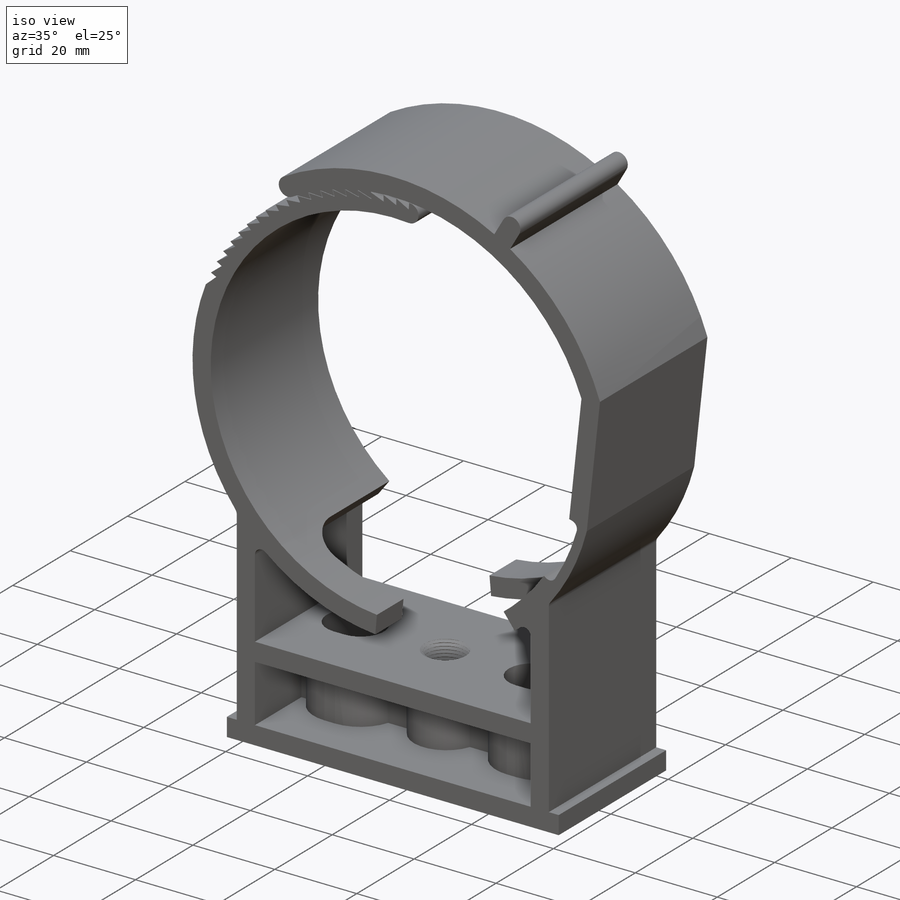
[diagram: iso view]
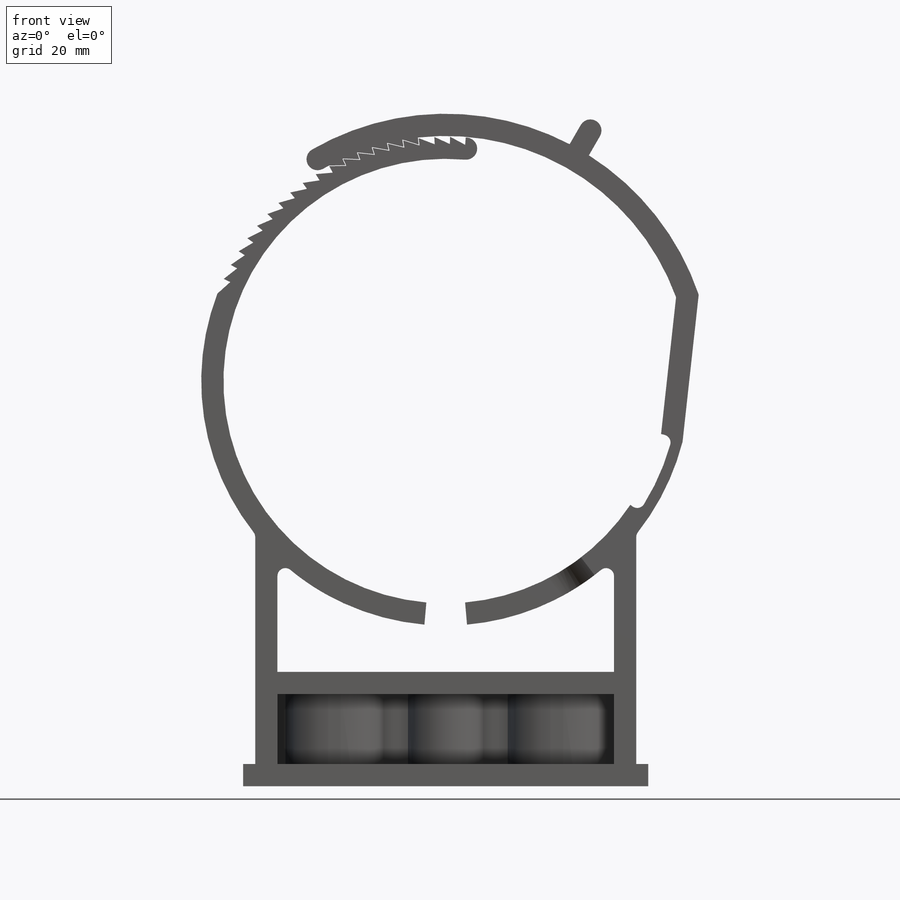
[diagram: front view]
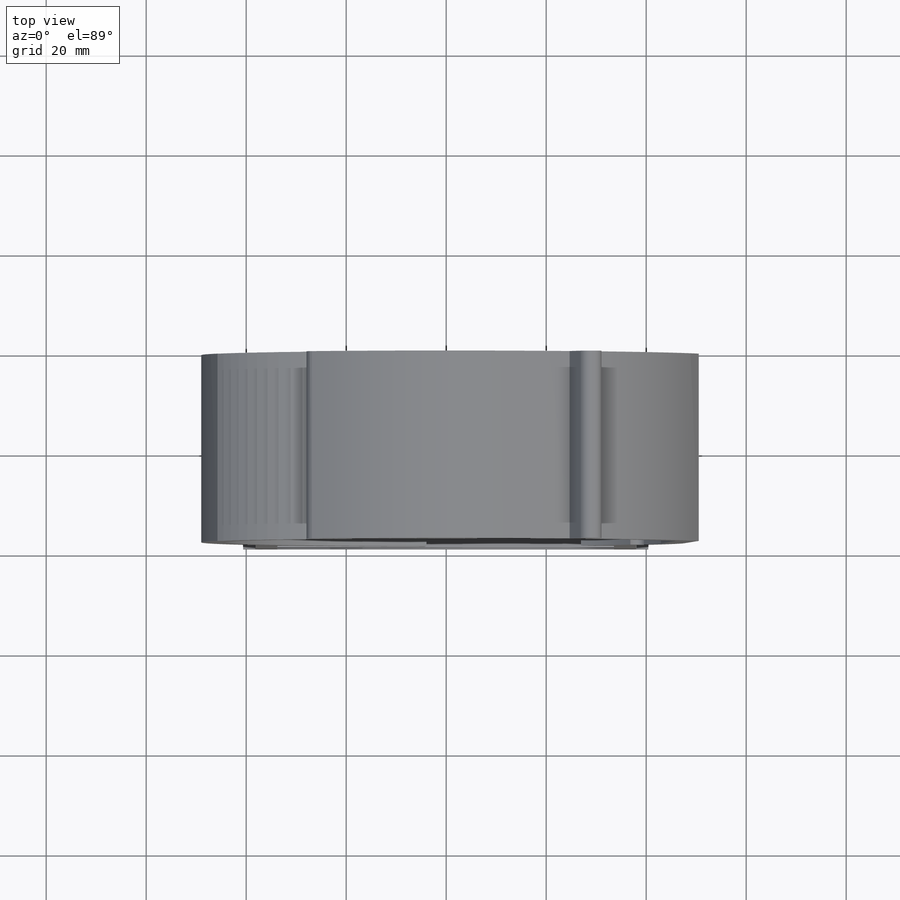
[diagram: top view]
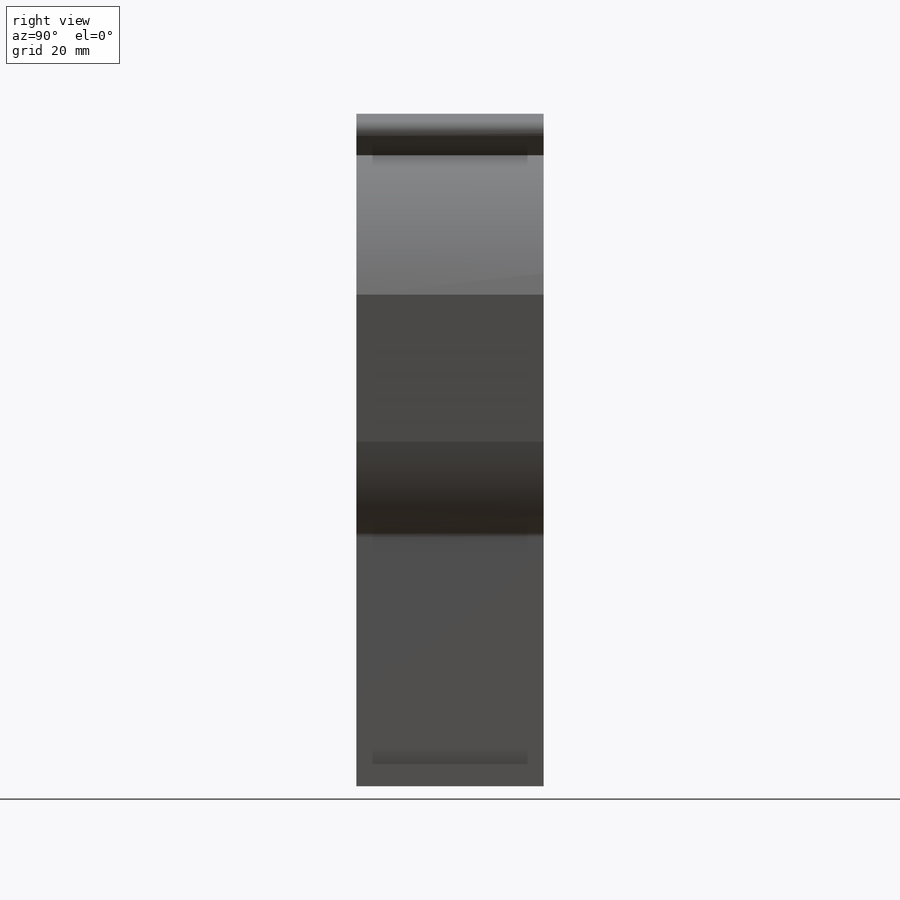
[diagram: right view]
SOLIDWORKS PART (.sldprt)
format: sldprt  version: not decoded by parser v0  size: 1,026,048 bytes
history: native  units: mm
features: sketch x8, cut_extrude x3, extrude x2, material x1, helix x1, sweep x1, fillet x1 (+12 scaffold rows collapsed)
feature tree (29):
  scaffold x12  (default folders/planes/origin — collapsed)
  material  "Material <not specified>"
  sketch  "Model"
  extrude  "Boss-Extrude1"  Depth=37.465mm
  sketch  "Sketch2"
  cut_extrude  "Cut-Extrude1"  Depth=29.337mm
  sketch  "Sketch2<2>"  dims[D5=3.175mm D6=2.54mm D7=5.0mm]
  sketch  "Sketch3"
  extrude  "Boss-Extrude2"  [1 undecoded]
  sketch  "Sketch4"
  cut_extrude  "Cut-Extrude2"  Depth=9.271mm
  sketch  "Sketch5"  dims[D1=0.0mm]
  cut_extrude  "Cut-Extrude3"  Depth=9.271mm
  sketch  "Sketch6"  dims[c1.D1=0.762mm c1.D2=~0.591597mm c2.D2=60.0deg]
  sketch  "Sketch7"
  helix  "Helix/Spiral1"  Pitch=25.9842mm
  sweep  "Cut-Sweep1"
  fillet  "Fillet1"  Radius=7.62mm
decode coverage: 9 of 16 modeling features carry decoded parameters
note: ~ marks probable driven/reference dimensions
note: 1 parameter value undecoded
note: suppression state not decoded; provenance and decode notes live in map.json
